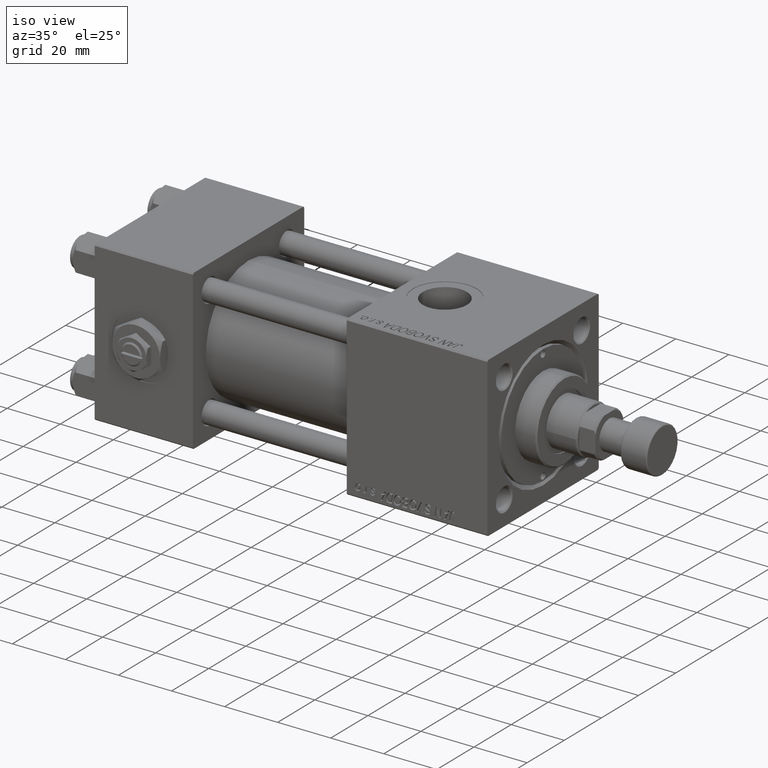
[diagram: clean part render]
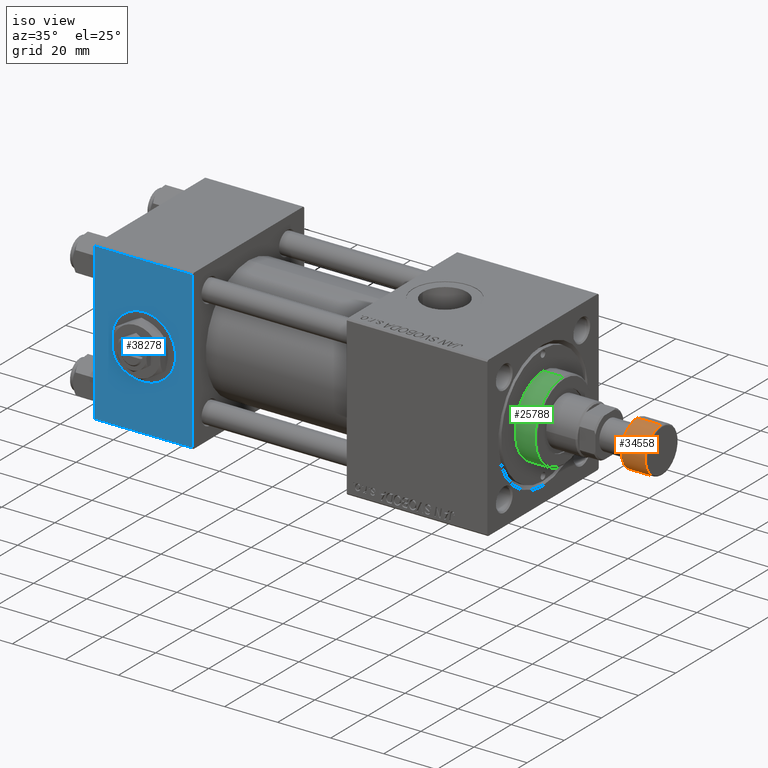
[diagram: same view with three faces highlighted in distinct colors, each labeled with its STEP entity id]
A machine part, iso view with three faces highlighted in distinct colors.
Their STEP definitions:

[orange] entity #34558 — the highlighted cylindrical surface (edge-blend (fillet) strip) has radius 8.5 mm, axis along (1, 0, 0).
#1145 = CARTESIAN_POINT ( 'NONE',  ( 8.500000000000000000, 0.000000000000000000, -10.00000000000000000 ) ) ;
#1280 = CIRCLE ( 'NONE', #33664, 8.500000000000000000 ) ;
#1402 = LINE ( 'NONE', #1145, #45939 ) ;
#1481 = DIRECTION ( 'NONE',  ( 1.000000000000000000, 0.000000000000000000, 0.000000000000000000 ) ) ;
#2081 = LINE ( 'NONE', #37841, #21207 ) ;
#3739 = EDGE_CURVE ( 'NONE', #46054, #44200, #28246, .T. ) ;
#6965 = VERTEX_POINT ( 'NONE', #9799 ) ;
#9506 = DIRECTION ( 'NONE',  ( 0.000000000000000000, 0.000000000000000000, 1.000000000000000000 ) ) ;
#9799 = CARTESIAN_POINT ( 'NONE',  ( -8.500000000000000000, 1.040949779275250140E-15, -0.5000000000000004441 ) ) ;
#10613 = DIRECTION ( 'NONE',  ( 1.000000000000000000, 0.000000000000000000, 0.000000000000000000 ) ) ;
#11672 = ORIENTED_EDGE ( 'NONE', *, *, #31370, .T. ) ;
#12257 = EDGE_CURVE ( 'NONE', #46054, #6965, #2081, .T. ) ;
#12463 = ORIENTED_EDGE ( 'NONE', *, *, #3739, .T. ) ;
#14619 = AXIS2_PLACEMENT_3D ( 'NONE', #50833, #9506, #1481 ) ;
#15127 = DIRECTION ( 'NONE',  ( 0.000000000000000000, 0.000000000000000000, 1.000000000000000000 ) ) ;
#15450 = EDGE_CURVE ( 'NONE', #44200, #17896, #1402, .T. ) ;
#17896 = VERTEX_POINT ( 'NONE', #27440 ) ;
#19129 = CARTESIAN_POINT ( 'NONE',  ( 0.000000000000000000, 0.000000000000000000, -10.00000000000000000 ) ) ;
#21207 = VECTOR ( 'NONE', #22370, 1000.000000000000000 ) ;
#22370 = DIRECTION ( 'NONE',  ( 0.000000000000000000, 0.000000000000000000, 1.000000000000000000 ) ) ;
#25082 = ORIENTED_EDGE ( 'NONE', *, *, #12257, .F. ) ;
#26848 = ORIENTED_EDGE ( 'NONE', *, *, #15450, .T. ) ;
#26873 = CARTESIAN_POINT ( 'NONE',  ( -8.500000000000000000, 1.040949779275250140E-15, -9.500000000000000000 ) ) ;
#27393 = CYLINDRICAL_SURFACE ( 'NONE', #31029, 8.500000000000000000 ) ;
#27440 = CARTESIAN_POINT ( 'NONE',  ( 8.500000000000000000, 0.000000000000000000, -0.5000000000000004441 ) ) ;
#28246 = CIRCLE ( 'NONE', #14619, 8.500000000000000000 ) ;
#29690 = DIRECTION ( 'NONE',  ( 0.000000000000000000, 0.000000000000000000, 1.000000000000000000 ) ) ;
#31029 = AXIS2_PLACEMENT_3D ( 'NONE', #19129, #15127, #10613 ) ;
#31370 = EDGE_CURVE ( 'NONE', #17896, #6965, #1280, .T. ) ;
#33664 = AXIS2_PLACEMENT_3D ( 'NONE', #33868, #42145, #50416 ) ;
#33868 = CARTESIAN_POINT ( 'NONE',  ( 0.000000000000000000, 0.000000000000000000, -0.5000000000000004441 ) ) ;
#34558 = ADVANCED_FACE ( 'NONE', ( #35646 ), #27393, .T. ) ;
#35646 = FACE_OUTER_BOUND ( 'NONE', #46324, .T. ) ;
#37841 = CARTESIAN_POINT ( 'NONE',  ( -8.500000000000000000, 1.040949779275250140E-15, -10.00000000000000000 ) ) ;
#40529 = CARTESIAN_POINT ( 'NONE',  ( 8.500000000000000000, 0.000000000000000000, -9.500000000000000000 ) ) ;
#42145 = DIRECTION ( 'NONE',  ( -0.000000000000000000, -0.000000000000000000, -1.000000000000000000 ) ) ;
#44200 = VERTEX_POINT ( 'NONE', #40529 ) ;
#45939 = VECTOR ( 'NONE', #29690, 1000.000000000000000 ) ;
#46054 = VERTEX_POINT ( 'NONE', #26873 ) ;
#46324 = EDGE_LOOP ( 'NONE', ( #25082, #12463, #26848, #11672 ) ) ;
#50416 = DIRECTION ( 'NONE',  ( 1.000000000000000000, 0.000000000000000000, 0.000000000000000000 ) ) ;
#50833 = CARTESIAN_POINT ( 'NONE',  ( 0.000000000000000000, 0.000000000000000000, -9.500000000000000000 ) ) ;

[blue] entity #38278 — the highlighted planar face has unit normal (0, 1, 0).
#1741 = DIRECTION ( 'NONE',  ( 1.000000000000000000, 0.000000000000000000, 0.000000000000000000 ) ) ;
#2997 = EDGE_CURVE ( 'NONE', #46991, #51564, #36018, .T. ) ;
#4437 = VECTOR ( 'NONE', #46267, 1000.000000000000000 ) ;
#5503 = CARTESIAN_POINT ( 'NONE',  ( 37.00000000000000000, -30.00000000000000000, -29.50000000000001776 ) ) ;
#5647 = AXIS2_PLACEMENT_3D ( 'NONE', #50745, #14195, #22720 ) ;
#9369 = DIRECTION ( 'NONE',  ( 0.000000000000000000, 0.000000000000000000, -1.000000000000000000 ) ) ;
#10972 = CARTESIAN_POINT ( 'NONE',  ( 0.000000000000000000, -30.00000000000000000, 29.49999999999999289 ) ) ;
#11321 = AXIS2_PLACEMENT_3D ( 'NONE', #37115, #40855, #9369 ) ;
#13673 = CARTESIAN_POINT ( 'NONE',  ( 37.00000000000000000, -30.00000000000000000, 29.49999999999999289 ) ) ;
#14195 = DIRECTION ( 'NONE',  ( -0.000000000000000000, 1.000000000000000000, 0.000000000000000000 ) ) ;
#14453 = FACE_OUTER_BOUND ( 'NONE', #42579, .T. ) ;
#18200 = FACE_BOUND ( 'NONE', #19904, .T. ) ;
#19181 = VECTOR ( 'NONE', #52787, 1000.000000000000000 ) ;
#19904 = EDGE_LOOP ( 'NONE', ( #48408, #26034 ) ) ;
#20487 = ORIENTED_EDGE ( 'NONE', *, *, #25129, .T. ) ;
#20735 = ORIENTED_EDGE ( 'NONE', *, *, #46367, .T. ) ;
#21048 = EDGE_CURVE ( 'NONE', #31144, #28607, #37995, .T. ) ;
#21391 = VERTEX_POINT ( 'NONE', #13673 ) ;
#22554 = LINE ( 'NONE', #5503, #23679 ) ;
#22720 = DIRECTION ( 'NONE',  ( 0.000000000000000000, -0.000000000000000000, 1.000000000000000000 ) ) ;
#22785 = ORIENTED_EDGE ( 'NONE', *, *, #21048, .T. ) ;
#23679 = VECTOR ( 'NONE', #1741, 1000.000000000000000 ) ;
#24332 = CIRCLE ( 'NONE', #37960, 12.00000000000000178 ) ;
#24373 = CARTESIAN_POINT ( 'NONE',  ( 18.50000000000000000, -30.00000000000000000, 0.000000000000000000 ) ) ;
#25129 = EDGE_CURVE ( 'NONE', #21391, #31144, #48251, .T. ) ;
#26034 = ORIENTED_EDGE ( 'NONE', *, *, #32173, .F. ) ;
#27403 = CARTESIAN_POINT ( 'NONE',  ( 18.50000000000000000, -30.00000000000000000, -12.00000000000000178 ) ) ;
#28607 = VERTEX_POINT ( 'NONE', #49867 ) ;
#31144 = VERTEX_POINT ( 'NONE', #10972 ) ;
#31660 = EDGE_CURVE ( 'NONE', #21391, #37201, #48779, .T. ) ;
#32173 = EDGE_CURVE ( 'NONE', #51564, #46991, #24332, .T. ) ;
#34463 = PLANE ( 'NONE',  #5647 ) ;
#35967 = DIRECTION ( 'NONE',  ( -1.000000000000000000, 0.000000000000000000, 0.000000000000000000 ) ) ;
#36018 = CIRCLE ( 'NONE', #11321, 12.00000000000000178 ) ;
#37115 = CARTESIAN_POINT ( 'NONE',  ( 18.50000000000000000, -30.00000000000000000, 0.000000000000000000 ) ) ;
#37201 = VERTEX_POINT ( 'NONE', #45434 ) ;
#37960 = AXIS2_PLACEMENT_3D ( 'NONE', #24373, #45646, #41383 ) ;
#37995 = LINE ( 'NONE', #39030, #4437 ) ;
#38278 = ADVANCED_FACE ( 'NONE', ( #18200, #14453 ), #34463, .F. ) ;
#39030 = CARTESIAN_POINT ( 'NONE',  ( 0.000000000000000000, -30.00000000000000000, 29.99999999999999289 ) ) ;
#40374 = VECTOR ( 'NONE', #35967, 1000.000000000000000 ) ;
#40419 = ORIENTED_EDGE ( 'NONE', *, *, #31660, .F. ) ;
#40611 = CARTESIAN_POINT ( 'NONE',  ( 18.50000000000000000, -30.00000000000000000, 12.00000000000000178 ) ) ;
#40855 = DIRECTION ( 'NONE',  ( 0.000000000000000000, -1.000000000000000000, -8.673617379884036705E-17 ) ) ;
#41383 = DIRECTION ( 'NONE',  ( 0.000000000000000000, 0.000000000000000000, -1.000000000000000000 ) ) ;
#42579 = EDGE_LOOP ( 'NONE', ( #22785, #20735, #40419, #20487 ) ) ;
#44507 = CARTESIAN_POINT ( 'NONE',  ( 37.00000000000000000, -30.00000000000000000, 29.99999999999999289 ) ) ;
#44516 = CARTESIAN_POINT ( 'NONE',  ( 37.00000000000000000, -30.00000000000000000, 29.49999999999999289 ) ) ;
#45434 = CARTESIAN_POINT ( 'NONE',  ( 37.00000000000000000, -30.00000000000000000, -29.50000000000001776 ) ) ;
#45646 = DIRECTION ( 'NONE',  ( 0.000000000000000000, -1.000000000000000000, -8.673617379884036705E-17 ) ) ;
#46267 = DIRECTION ( 'NONE',  ( 0.000000000000000000, 0.000000000000000000, -1.000000000000000000 ) ) ;
#46367 = EDGE_CURVE ( 'NONE', #28607, #37201, #22554, .T. ) ;
#46991 = VERTEX_POINT ( 'NONE', #27403 ) ;
#48251 = LINE ( 'NONE', #44516, #40374 ) ;
#48408 = ORIENTED_EDGE ( 'NONE', *, *, #2997, .F. ) ;
#48779 = LINE ( 'NONE', #44507, #19181 ) ;
#49867 = CARTESIAN_POINT ( 'NONE',  ( 0.000000000000000000, -30.00000000000000000, -29.50000000000001776 ) ) ;
#50745 = CARTESIAN_POINT ( 'NONE',  ( 37.00000000000000000, -30.00000000000000000, 29.99999999999999289 ) ) ;
#51564 = VERTEX_POINT ( 'NONE', #40611 ) ;
#52787 = DIRECTION ( 'NONE',  ( 0.000000000000000000, 0.000000000000000000, -1.000000000000000000 ) ) ;

[green] entity #25788 — the highlighted cylindrical surface (partial cylindrical patch) has radius 15 mm, axis along (-1, -0, -0).
#1132 = CARTESIAN_POINT ( 'NONE',  ( 15.00000000000000000, 1.836970198721029589E-15, 36.69999999999999574 ) ) ;
#4015 = DIRECTION ( 'NONE',  ( -0.000000000000000000, -0.000000000000000000, -1.000000000000000000 ) ) ;
#4071 = VERTEX_POINT ( 'NONE', #14412 ) ;
#5419 = CARTESIAN_POINT ( 'NONE',  ( 15.00000000000000000, 1.836970198721029589E-15, 36.20000000000000284 ) ) ;
#5841 = ORIENTED_EDGE ( 'NONE', *, *, #30292, .T. ) ;
#6491 = ORIENTED_EDGE ( 'NONE', *, *, #38474, .T. ) ;
#8918 = CARTESIAN_POINT ( 'NONE',  ( 0.000000000000000000, 0.000000000000000000, 36.69999999999999574 ) ) ;
#11860 = CARTESIAN_POINT ( 'NONE',  ( 15.00000000000000000, 1.836970198721029589E-15, 28.69999999999999929 ) ) ;
#12828 = LINE ( 'NONE', #29089, #49833 ) ;
#12919 = DIRECTION ( 'NONE',  ( -0.000000000000000000, -0.000000000000000000, -1.000000000000000000 ) ) ;
#14412 = CARTESIAN_POINT ( 'NONE',  ( -15.00000000000000000, 0.000000000000000000, 36.20000000000000284 ) ) ;
#17178 = CARTESIAN_POINT ( 'NONE',  ( 0.000000000000000000, 0.000000000000000000, 36.20000000000000284 ) ) ;
#17280 = VERTEX_POINT ( 'NONE', #5419 ) ;
#19841 = AXIS2_PLACEMENT_3D ( 'NONE', #8918, #12919, #20657 ) ;
#20657 = DIRECTION ( 'NONE',  ( -1.000000000000000000, 0.000000000000000000, 0.000000000000000000 ) ) ;
#20929 = DIRECTION ( 'NONE',  ( 1.000000000000000000, 0.000000000000000000, 0.000000000000000000 ) ) ;
#21006 = AXIS2_PLACEMENT_3D ( 'NONE', #26914, #30915, #30138 ) ;
#24197 = EDGE_CURVE ( 'NONE', #17280, #35027, #32896, .T. ) ;
#25443 = FACE_OUTER_BOUND ( 'NONE', #31469, .T. ) ;
#25788 = ADVANCED_FACE ( 'NONE', ( #25443 ), #49979, .T. ) ;
#25863 = AXIS2_PLACEMENT_3D ( 'NONE', #17178, #49737, #20929 ) ;
#26914 = CARTESIAN_POINT ( 'NONE',  ( 0.000000000000000000, 0.000000000000000000, 28.69999999999999929 ) ) ;
#27300 = EDGE_CURVE ( 'NONE', #17280, #4071, #46274, .T. ) ;
#28409 = VECTOR ( 'NONE', #37157, 1000.000000000000000 ) ;
#28494 = CARTESIAN_POINT ( 'NONE',  ( -15.00000000000000000, 0.000000000000000000, 28.69999999999999929 ) ) ;
#29089 = CARTESIAN_POINT ( 'NONE',  ( -15.00000000000000000, 0.000000000000000000, 36.69999999999999574 ) ) ;
#30138 = DIRECTION ( 'NONE',  ( 1.000000000000000000, 0.000000000000000000, 0.000000000000000000 ) ) ;
#30292 = EDGE_CURVE ( 'NONE', #4071, #38743, #12828, .T. ) ;
#30915 = DIRECTION ( 'NONE',  ( 0.000000000000000000, 0.000000000000000000, 1.000000000000000000 ) ) ;
#31469 = EDGE_LOOP ( 'NONE', ( #46402, #38717, #5841, #6491 ) ) ;
#32896 = LINE ( 'NONE', #1132, #28409 ) ;
#35027 = VERTEX_POINT ( 'NONE', #11860 ) ;
#37157 = DIRECTION ( 'NONE',  ( -0.000000000000000000, -0.000000000000000000, -1.000000000000000000 ) ) ;
#38474 = EDGE_CURVE ( 'NONE', #38743, #35027, #39709, .T. ) ;
#38717 = ORIENTED_EDGE ( 'NONE', *, *, #27300, .T. ) ;
#38743 = VERTEX_POINT ( 'NONE', #28494 ) ;
#39709 = CIRCLE ( 'NONE', #21006, 15.00000000000000000 ) ;
#46274 = CIRCLE ( 'NONE', #25863, 15.00000000000000000 ) ;
#46402 = ORIENTED_EDGE ( 'NONE', *, *, #24197, .F. ) ;
#49737 = DIRECTION ( 'NONE',  ( 0.000000000000000000, 0.000000000000000000, -1.000000000000000000 ) ) ;
#49833 = VECTOR ( 'NONE', #4015, 1000.000000000000000 ) ;
#49979 = CYLINDRICAL_SURFACE ( 'NONE', #19841, 15.00000000000000000 ) ;